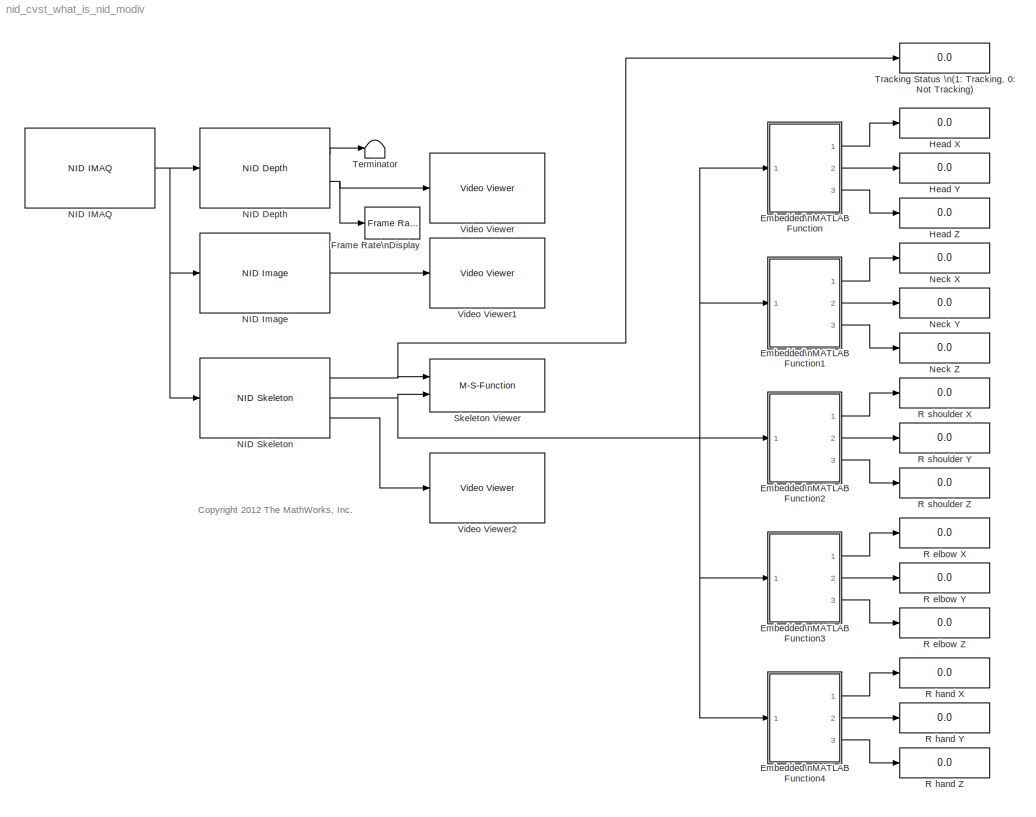
MODEL nid_cvst_what_is_nid_modiv
KIND model
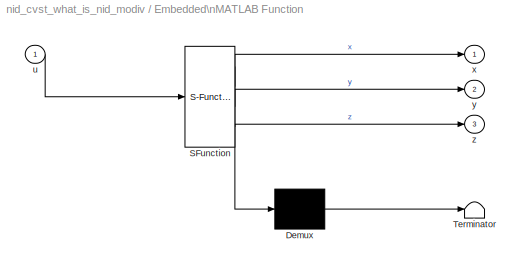
BLOCK [SubSystem] Embedded\nMATLAB Function
  ErrorFcn = Stateflow.Translate.translate
  FunctionWithSeparateData = off
  MaskHideContents = off
  MinAlgLoopOccurrences = off
  Opaque = off
  PermitHierarchicalResolution = ExplicitOnly
  Ports = [1, 3]
  PropExecContextOutsideSubsystem = off
  RTWSystemCode = Auto
  RequestExecContextInheritance = off
  SFBlockType = MATLAB Function
  SID = 126
  TreatAsAtomicUnit = on
BLOCK [Demux] Embedded\nMATLAB Function/ Demux 
  Outputs = 1
  Ports = [1, 1]
  SID = 126::21
BLOCK [S-Function] Embedded\nMATLAB Function/ SFunction 
  EnableBusSupport = on
  FunctionName = sf_sfun
  PortCounts = [1 4]
  Ports = [1, 4]
  SID = 126::20
  Tag = Stateflow S-Function nid_cvst_what_is_nid_modiv 2
BLOCK [Terminator] Embedded\nMATLAB Function/ Terminator 
  SID = 126::22
BLOCK [Inport] Embedded\nMATLAB Function/u
  IconDisplay = Port number
  SID = 126::1
BLOCK [Outport] Embedded\nMATLAB Function/x
  IconDisplay = Port number
  SID = 126::18
BLOCK [Outport] Embedded\nMATLAB Function/y
  IconDisplay = Port number
  Port = 2
  SID = 126::5
BLOCK [Outport] Embedded\nMATLAB Function/z
  IconDisplay = Port number
  Port = 3
  SID = 126::19
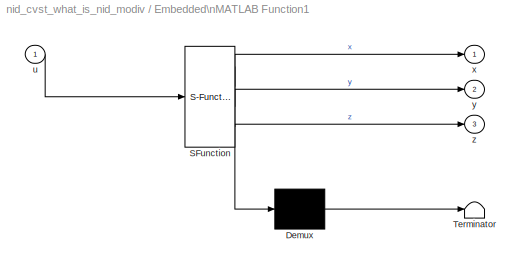
BLOCK [SubSystem] Embedded\nMATLAB Function1
  ErrorFcn = Stateflow.Translate.translate
  FunctionWithSeparateData = off
  MaskHideContents = off
  MinAlgLoopOccurrences = off
  Opaque = off
  PermitHierarchicalResolution = ExplicitOnly
  Ports = [1, 3]
  PropExecContextOutsideSubsystem = off
  RTWSystemCode = Auto
  RequestExecContextInheritance = off
  SFBlockType = MATLAB Function
  SID = 127
  TreatAsAtomicUnit = on
BLOCK [Demux] Embedded\nMATLAB Function1/ Demux 
  Outputs = 1
  Ports = [1, 1]
  SID = 127::21
BLOCK [S-Function] Embedded\nMATLAB Function1/ SFunction 
  EnableBusSupport = on
  FunctionName = sf_sfun
  PortCounts = [1 4]
  Ports = [1, 4]
  SID = 127::20
  Tag = Stateflow S-Function nid_cvst_what_is_nid_modiv 1
BLOCK [Terminator] Embedded\nMATLAB Function1/ Terminator 
  SID = 127::22
BLOCK [Inport] Embedded\nMATLAB Function1/u
  IconDisplay = Port number
  SID = 127::1
BLOCK [Outport] Embedded\nMATLAB Function1/x
  IconDisplay = Port number
  SID = 127::18
BLOCK [Outport] Embedded\nMATLAB Function1/y
  IconDisplay = Port number
  Port = 2
  SID = 127::5
BLOCK [Outport] Embedded\nMATLAB Function1/z
  IconDisplay = Port number
  Port = 3
  SID = 127::19
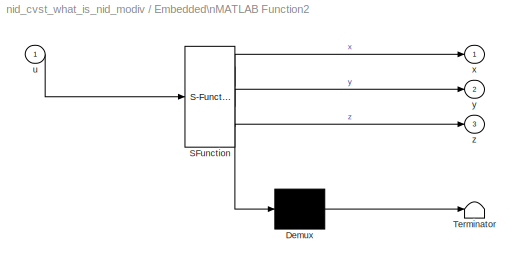
BLOCK [SubSystem] Embedded\nMATLAB Function2
  ErrorFcn = Stateflow.Translate.translate
  FunctionWithSeparateData = off
  MaskHideContents = off
  MinAlgLoopOccurrences = off
  Opaque = off
  PermitHierarchicalResolution = ExplicitOnly
  Ports = [1, 3]
  PropExecContextOutsideSubsystem = off
  RTWSystemCode = Auto
  RequestExecContextInheritance = off
  SFBlockType = MATLAB Function
  SID = 128
  TreatAsAtomicUnit = on
BLOCK [Demux] Embedded\nMATLAB Function2/ Demux 
  Outputs = 1
  Ports = [1, 1]
  SID = 128::21
BLOCK [S-Function] Embedded\nMATLAB Function2/ SFunction 
  EnableBusSupport = on
  FunctionName = sf_sfun
  PortCounts = [1 4]
  Ports = [1, 4]
  SID = 128::20
  Tag = Stateflow S-Function nid_cvst_what_is_nid_modiv 3
BLOCK [Terminator] Embedded\nMATLAB Function2/ Terminator 
  SID = 128::22
BLOCK [Inport] Embedded\nMATLAB Function2/u
  IconDisplay = Port number
  SID = 128::1
BLOCK [Outport] Embedded\nMATLAB Function2/x
  IconDisplay = Port number
  SID = 128::18
BLOCK [Outport] Embedded\nMATLAB Function2/y
  IconDisplay = Port number
  Port = 2
  SID = 128::5
BLOCK [Outport] Embedded\nMATLAB Function2/z
  IconDisplay = Port number
  Port = 3
  SID = 128::19
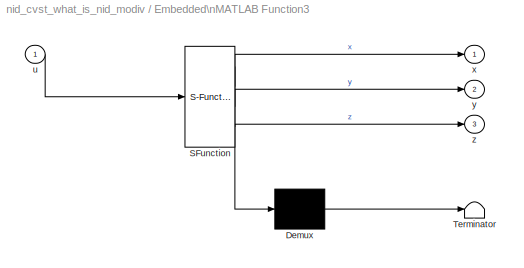
BLOCK [SubSystem] Embedded\nMATLAB Function3
  ErrorFcn = Stateflow.Translate.translate
  FunctionWithSeparateData = off
  MaskHideContents = off
  MinAlgLoopOccurrences = off
  Opaque = off
  PermitHierarchicalResolution = ExplicitOnly
  Ports = [1, 3]
  PropExecContextOutsideSubsystem = off
  RTWSystemCode = Auto
  RequestExecContextInheritance = off
  SFBlockType = MATLAB Function
  SID = 129
  TreatAsAtomicUnit = on
BLOCK [Demux] Embedded\nMATLAB Function3/ Demux 
  Outputs = 1
  Ports = [1, 1]
  SID = 129::21
BLOCK [S-Function] Embedded\nMATLAB Function3/ SFunction 
  EnableBusSupport = on
  FunctionName = sf_sfun
  PortCounts = [1 4]
  Ports = [1, 4]
  SID = 129::20
  Tag = Stateflow S-Function nid_cvst_what_is_nid_modiv 4
BLOCK [Terminator] Embedded\nMATLAB Function3/ Terminator 
  SID = 129::22
BLOCK [Inport] Embedded\nMATLAB Function3/u
  IconDisplay = Port number
  SID = 129::1
BLOCK [Outport] Embedded\nMATLAB Function3/x
  IconDisplay = Port number
  SID = 129::18
BLOCK [Outport] Embedded\nMATLAB Function3/y
  IconDisplay = Port number
  Port = 2
  SID = 129::5
BLOCK [Outport] Embedded\nMATLAB Function3/z
  IconDisplay = Port number
  Port = 3
  SID = 129::19
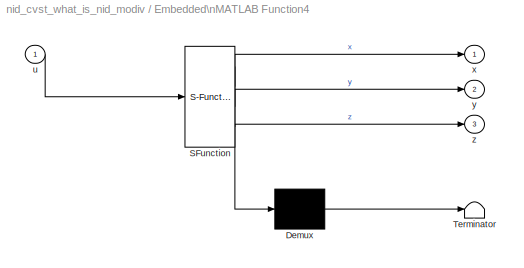
BLOCK [SubSystem] Embedded\nMATLAB Function4
  ErrorFcn = Stateflow.Translate.translate
  FunctionWithSeparateData = off
  MaskHideContents = off
  MinAlgLoopOccurrences = off
  Opaque = off
  PermitHierarchicalResolution = ExplicitOnly
  Ports = [1, 3]
  PropExecContextOutsideSubsystem = off
  RTWSystemCode = Auto
  RequestExecContextInheritance = off
  SFBlockType = MATLAB Function
  SID = 130
  TreatAsAtomicUnit = on
BLOCK [Demux] Embedded\nMATLAB Function4/ Demux 
  Outputs = 1
  Ports = [1, 1]
  SID = 130::21
BLOCK [S-Function] Embedded\nMATLAB Function4/ SFunction 
  EnableBusSupport = on
  FunctionName = sf_sfun
  PortCounts = [1 4]
  Ports = [1, 4]
  SID = 130::20
  Tag = Stateflow S-Function nid_cvst_what_is_nid_modiv 5
BLOCK [Terminator] Embedded\nMATLAB Function4/ Terminator 
  SID = 130::22
BLOCK [Inport] Embedded\nMATLAB Function4/u
  IconDisplay = Port number
  SID = 130::1
BLOCK [Outport] Embedded\nMATLAB Function4/x
  IconDisplay = Port number
  SID = 130::18
BLOCK [Outport] Embedded\nMATLAB Function4/y
  IconDisplay = Port number
  Port = 2
  SID = 130::5
BLOCK [Outport] Embedded\nMATLAB Function4/z
  IconDisplay = Port number
  Port = 3
  SID = 130::19
BLOCK [Reference] Frame Rate\nDisplay  REF=visionsinks/Frame Rate\nDisplay
  Ports = [1]
  SID = 115
  SourceBlock = visionsinks/Frame Rate\nDisplay
  SourceType = Frame Rate Display
  UpdateRate = 10
BLOCK [Display] Head X
  Decimation = 1
  Lockdown = off
  Ports = [1]
  SID = 131
BLOCK [Display] Head Y
  Decimation = 1
  Lockdown = off
  Ports = [1]
  SID = 132
BLOCK [Display] Head Z
  Decimation = 1
  Lockdown = off
  Ports = [1]
  SID = 133
BLOCK [Reference] NID Depth  REF=nid_lib/NID Depth
  Ports = [1, 2]
  SID = 117
  SourceBlock = nid_lib/NID Depth
  SourceType = NID Depth
  conv_XYZ_RW = off
  depthOutput = Depth
  viewer = on
BLOCK [Reference] NID IMAQ  REF=nid_lib/NID IMAQ
  Ports = [0, 1]
  SID = 84
  SourceBlock = nid_lib/NID IMAQ
  SourceType = NID IMAQ
  angle = 0
  angle_input = off
  angle_read = off
  imaq_depth = on
  imaq_image = on
  imaq_ir = off
  imaq_motion = off
  imaq_sample_time = 1/30
  imaq_skeleton = on
  infer_skeleton = on
  mirror_image = off
  near_mode = off
  needPsiPose = off
  res_fps = VGA (640x480): 30 FPS
  seated_mode = off
  skeleton_smooth = [0.5 0.5 0.5 0.05 0.04]
  view_point = on
BLOCK [Reference] NID Image  REF=nid_lib/NID Image
  Ports = [1, 1]
  SID = 120
  SourceBlock = nid_lib/NID Image
  SourceType = NID Image
  imageOutput = RGB
BLOCK [Reference] NID Skeleton  REF=nid_lib/NID Skeleton
  Ports = [1, 3]
  SID = 85
  SourceBlock = nid_lib/NID Skeleton
  SourceType = NID Skeleton
  conv_XYZ_RW = on
  num_of_skeleton_tracking = 1
  viewer = on
BLOCK [Display] Neck X
  Decimation = 1
  Lockdown = off
  Ports = [1]
  SID = 134
BLOCK [Display] Neck Y
  Decimation = 1
  Lockdown = off
  Ports = [1]
  SID = 135
BLOCK [Display] Neck Z
  Decimation = 1
  Lockdown = off
  Ports = [1]
  SID = 136
BLOCK [Display] R elbow X
  Decimation = 1
  Lockdown = off
  Ports = [1]
  SID = 137
BLOCK [Display] R elbow Y
  Decimation = 1
  Lockdown = off
  Ports = [1]
  SID = 138
BLOCK [Display] R elbow Z
  Decimation = 1
  Lockdown = off
  Ports = [1]
  SID = 139
BLOCK [Display] R hand X
  Decimation = 1
  Lockdown = off
  Ports = [1]
  SID = 140
BLOCK [Display] R hand Y
  Decimation = 1
  Lockdown = off
  Ports = [1]
  SID = 141
BLOCK [Display] R hand Z
  Decimation = 1
  Lockdown = off
  Ports = [1]
  SID = 142
BLOCK [Display] R shoulder X
  Decimation = 1
  Lockdown = off
  Ports = [1]
  SID = 143
BLOCK [Display] R shoulder Y
  Decimation = 1
  Lockdown = off
  Ports = [1]
  SID = 144
BLOCK [Display] R shoulder Z
  Decimation = 1
  Lockdown = off
  Ports = [1]
  SID = 145
BLOCK [M-S-Function] Skeleton Viewer
  FunctionName = skeleton_viewer
  Ports = [2]
  SID = 110
BLOCK [Terminator] Terminator
  SID = 119
BLOCK [Display] Tracking Status \n(1: Tracking, 0: Not Tracking)
  Decimation = 1
  Lockdown = off
  Ports = [1]
  SID = 146
BLOCK [Reference] Video Viewer  REF=visionsinks/Video Viewer
  AxisZoom = on
  DefaultConfigurationName = vipscopes.VideoViewerScopeCfg
  FigPos = [447 719 410 300]
  OpenAtMdlStart = on
  Ports = [1]
  SID = 122
  SourceBlock = visionsinks/Video Viewer
  SourceType = Video Viewer
  UserData = DataTag0
  UserDataPersistent = on
  colormapValue = jet(256)
  imagePorts = One multidimensional signal
  inputType = Obsolete7b
  maxInputVal = 255
  minInputVal = 0
  specRange = off
  trueSizedOnce = off
  useColorMap = off
BLOCK [Reference] Video Viewer1  REF=visionsinks/Video Viewer
  AxisZoom = on
  DefaultConfigurationName = vipscopes.VideoViewerScopeCfg
  FigPos = [685 615 410 300]
  OpenAtMdlStart = on
  Ports = [1]
  SID = 123
  SourceBlock = visionsinks/Video Viewer
  SourceType = Video Viewer
  UserData = DataTag1
  UserDataPersistent = on
  colormapValue = jet(256)
  imagePorts = One multidimensional signal
  inputType = Obsolete7b
  maxInputVal = 255
  minInputVal = 0
  specRange = off
  trueSizedOnce = off
  useColorMap = off
BLOCK [Reference] Video Viewer2  REF=visionsinks/Video Viewer
  AxisZoom = on
  DefaultConfigurationName = vipscopes.VideoViewerScopeCfg
  FigPos = [60 607 410 300]
  OpenAtMdlStart = on
  Ports = [1]
  SID = 124
  SourceBlock = visionsinks/Video Viewer
  SourceType = Video Viewer
  UserData = DataTag2
  UserDataPersistent = on
  colormapValue = jet(256)
  imagePorts = One multidimensional signal
  inputType = Obsolete7b
  maxInputVal = 255
  minInputVal = 0
  specRange = off
  trueSizedOnce = off
  useColorMap = off
ANNOTATION (root): <copyright redacted>
LINE Embedded\nMATLAB Function/ Demux :1 -> Embedded\nMATLAB Function/ Terminator :1
LINE Embedded\nMATLAB Function/ SFunction :1 -> Embedded\nMATLAB Function/ Demux :1
LINE Embedded\nMATLAB Function/ SFunction :2 -> Embedded\nMATLAB Function/x:1
LINE Embedded\nMATLAB Function/ SFunction :3 -> Embedded\nMATLAB Function/y:1
LINE Embedded\nMATLAB Function/ SFunction :4 -> Embedded\nMATLAB Function/z:1
LINE Embedded\nMATLAB Function/u:1 -> Embedded\nMATLAB Function/ SFunction :1
LINE Embedded\nMATLAB Function1/ Demux :1 -> Embedded\nMATLAB Function1/ Terminator :1
LINE Embedded\nMATLAB Function1/ SFunction :1 -> Embedded\nMATLAB Function1/ Demux :1
LINE Embedded\nMATLAB Function1/ SFunction :2 -> Embedded\nMATLAB Function1/x:1
LINE Embedded\nMATLAB Function1/ SFunction :3 -> Embedded\nMATLAB Function1/y:1
LINE Embedded\nMATLAB Function1/ SFunction :4 -> Embedded\nMATLAB Function1/z:1
LINE Embedded\nMATLAB Function1/u:1 -> Embedded\nMATLAB Function1/ SFunction :1
LINE Embedded\nMATLAB Function1:1 -> Neck X:1
LINE Embedded\nMATLAB Function1:2 -> Neck Y:1
LINE Embedded\nMATLAB Function1:3 -> Neck Z:1
LINE Embedded\nMATLAB Function2/ Demux :1 -> Embedded\nMATLAB Function2/ Terminator :1
LINE Embedded\nMATLAB Function2/ SFunction :1 -> Embedded\nMATLAB Function2/ Demux :1
LINE Embedded\nMATLAB Function2/ SFunction :2 -> Embedded\nMATLAB Function2/x:1
LINE Embedded\nMATLAB Function2/ SFunction :3 -> Embedded\nMATLAB Function2/y:1
LINE Embedded\nMATLAB Function2/ SFunction :4 -> Embedded\nMATLAB Function2/z:1
LINE Embedded\nMATLAB Function2/u:1 -> Embedded\nMATLAB Function2/ SFunction :1
LINE Embedded\nMATLAB Function2:1 -> R shoulder X:1
LINE Embedded\nMATLAB Function2:2 -> R shoulder Y:1
LINE Embedded\nMATLAB Function2:3 -> R shoulder Z:1
LINE Embedded\nMATLAB Function3/ Demux :1 -> Embedded\nMATLAB Function3/ Terminator :1
LINE Embedded\nMATLAB Function3/ SFunction :1 -> Embedded\nMATLAB Function3/ Demux :1
LINE Embedded\nMATLAB Function3/ SFunction :2 -> Embedded\nMATLAB Function3/x:1
LINE Embedded\nMATLAB Function3/ SFunction :3 -> Embedded\nMATLAB Function3/y:1
LINE Embedded\nMATLAB Function3/ SFunction :4 -> Embedded\nMATLAB Function3/z:1
LINE Embedded\nMATLAB Function3/u:1 -> Embedded\nMATLAB Function3/ SFunction :1
LINE Embedded\nMATLAB Function3:1 -> R elbow X:1
LINE Embedded\nMATLAB Function3:2 -> R elbow Y:1
LINE Embedded\nMATLAB Function3:3 -> R elbow Z:1
LINE Embedded\nMATLAB Function4/ Demux :1 -> Embedded\nMATLAB Function4/ Terminator :1
LINE Embedded\nMATLAB Function4/ SFunction :1 -> Embedded\nMATLAB Function4/ Demux :1
LINE Embedded\nMATLAB Function4/ SFunction :2 -> Embedded\nMATLAB Function4/x:1
LINE Embedded\nMATLAB Function4/ SFunction :3 -> Embedded\nMATLAB Function4/y:1
LINE Embedded\nMATLAB Function4/ SFunction :4 -> Embedded\nMATLAB Function4/z:1
LINE Embedded\nMATLAB Function4/u:1 -> Embedded\nMATLAB Function4/ SFunction :1
LINE Embedded\nMATLAB Function4:1 -> R hand X:1
LINE Embedded\nMATLAB Function4:2 -> R hand Y:1
LINE Embedded\nMATLAB Function4:3 -> R hand Z:1
LINE Embedded\nMATLAB Function:1 -> Head X:1
LINE Embedded\nMATLAB Function:2 -> Head Y:1
LINE Embedded\nMATLAB Function:3 -> Head Z:1
LINE NID Depth:1 -> Terminator:1
NET NID Depth:2 -> Frame Rate\nDisplay:1, Video Viewer:1
NET NID IMAQ:1 -> NID Depth:1, NID Image:1, NID Skeleton:1
LINE NID Image:1 -> Video Viewer1:1
NET NID Skeleton:1 -> Skeleton Viewer:1, Tracking Status \n(1: Tracking, 0: Not Tracking):1
NET NID Skeleton:2 -> Embedded\nMATLAB Function1:1, Embedded\nMATLAB Function2:1, Embedded\nMATLAB Function3:1, Embedded\nMATLAB Function4:1, Embedded\nMATLAB Function:1, Skeleton Viewer:2
LINE NID Skeleton:3 -> Video Viewer2:1
note: NET lines group one-source signal fan-out (src -> all destinations, sorted); 1:1 wires keep LINE
CHART Embedded\nMATLAB Function1 states=1 transitions=1
  STATE_LABEL 'eML_blk_kernel()'
CHART Embedded\nMATLAB Function states=1 transitions=1
  STATE_LABEL 'eML_blk_kernel()'
CHART Embedded\nMATLAB Function2 states=1 transitions=1
  STATE_LABEL 'eML_blk_kernel()'
CHART Embedded\nMATLAB Function3 states=1 transitions=1
  STATE_LABEL 'eML_blk_kernel()'
CHART Embedded\nMATLAB Function4 states=1 transitions=1
  STATE_LABEL 'eML_blk_kernel()'
